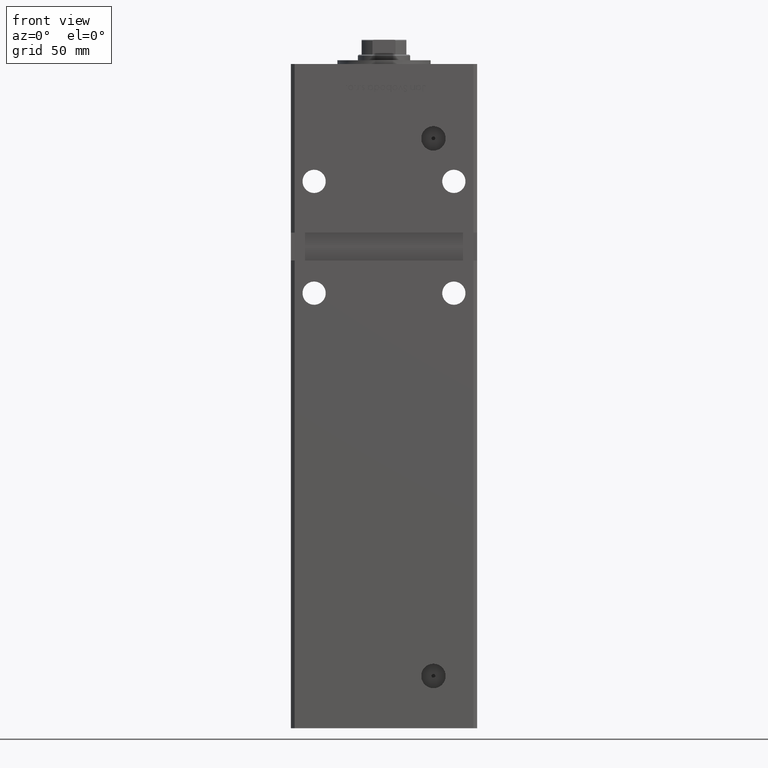
[diagram: clean part render]
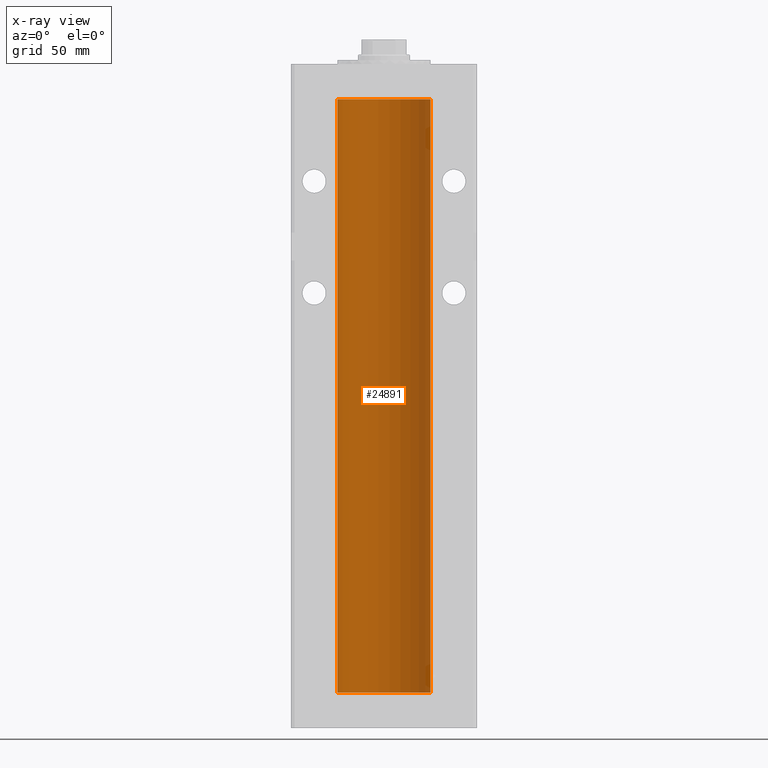
[diagram: x-ray — body ghosted, one internal face saturated and labeled with its STEP entity id]
A machine part, front view, then the same camera in x-ray: the body is ghosted and one INTERNAL B-rep face — a face not visible from any outside direction — is saturated and labeled: STEP entity #24891.
In plain terms, the highlighted cylindrical surface (partial cylindrical patch) has radius 25 mm, axis along (-0, -0, -1).
Its self-contained STEP definition (entity closure, byte-faithful):
#7866 = VERTEX_POINT ( 'NONE', #34885 ) ;
#7893 = CARTESIAN_POINT ( 'NONE',  ( 0.000000000000000000, 0.000000000000000000, 0.000000000000000000 ) ) ;
#7945 = CIRCLE ( 'NONE', #17353, 25.00000000000000000 ) ;
#8152 = CYLINDRICAL_SURFACE ( 'NONE', #14616, 25.00000000000000000 ) ;
#8326 = CIRCLE ( 'NONE', #48701, 25.00000000000000000 ) ;
#8679 = DIRECTION ( 'NONE',  ( 1.000000000000000000, 0.000000000000000000, 0.000000000000000000 ) ) ;
#14616 = AXIS2_PLACEMENT_3D ( 'NONE', #40410, #23744, #25529 ) ;
#14942 = CARTESIAN_POINT ( 'NONE',  ( 25.00000000000000000, 3.061616997868383043E-15, 318.5000000000000000 ) ) ;
#15029 = VECTOR ( 'NONE', #18341, 1000.000000000000000 ) ;
#15925 = EDGE_CURVE ( 'NONE', #22556, #42647, #32819, .T. ) ;
#17353 = AXIS2_PLACEMENT_3D ( 'NONE', #7893, #36913, #8679 ) ;
#18341 = DIRECTION ( 'NONE',  ( -0.000000000000000000, -0.000000000000000000, -1.000000000000000000 ) ) ;
#18685 = ORIENTED_EDGE ( 'NONE', *, *, #15925, .F. ) ;
#20450 = CARTESIAN_POINT ( 'NONE',  ( 25.00000000000000000, 3.061616997868383043E-15, 318.5000000000000000 ) ) ;
#21214 = FACE_OUTER_BOUND ( 'NONE', #37215, .T. ) ;
#22556 = VERTEX_POINT ( 'NONE', #14942 ) ;
#23744 = DIRECTION ( 'NONE',  ( -0.000000000000000000, -0.000000000000000000, -1.000000000000000000 ) ) ;
#24891 = ADVANCED_FACE ( 'NONE', ( #21214 ), #8152, .F. ) ;
#25028 = DIRECTION ( 'NONE',  ( 1.000000000000000000, 0.000000000000000000, 0.000000000000000000 ) ) ;
#25529 = DIRECTION ( 'NONE',  ( -1.000000000000000000, 0.000000000000000000, 0.000000000000000000 ) ) ;
#25639 = LINE ( 'NONE', #42040, #15029 ) ;
#28442 = CARTESIAN_POINT ( 'NONE',  ( 25.00000000000000000, 3.061616997868383043E-15, 0.000000000000000000 ) ) ;
#29862 = CARTESIAN_POINT ( 'NONE',  ( 0.000000000000000000, 0.000000000000000000, 318.5000000000000000 ) ) ;
#30664 = ORIENTED_EDGE ( 'NONE', *, *, #39055, .T. ) ;
#31925 = EDGE_CURVE ( 'NONE', #42647, #51579, #7945, .T. ) ;
#32810 = CARTESIAN_POINT ( 'NONE',  ( -25.00000000000000000, 0.000000000000000000, 0.000000000000000000 ) ) ;
#32819 = LINE ( 'NONE', #20450, #37362 ) ;
#33351 = DIRECTION ( 'NONE',  ( -0.000000000000000000, 0.000000000000000000, 1.000000000000000000 ) ) ;
#34885 = CARTESIAN_POINT ( 'NONE',  ( -25.00000000000000000, 0.000000000000000000, 318.5000000000000000 ) ) ;
#36615 = DIRECTION ( 'NONE',  ( -0.000000000000000000, -0.000000000000000000, -1.000000000000000000 ) ) ;
#36913 = DIRECTION ( 'NONE',  ( -0.000000000000000000, 0.000000000000000000, 1.000000000000000000 ) ) ;
#37215 = EDGE_LOOP ( 'NONE', ( #18685, #40989, #30664, #49571 ) ) ;
#37362 = VECTOR ( 'NONE', #36615, 1000.000000000000000 ) ;
#39055 = EDGE_CURVE ( 'NONE', #7866, #51579, #25639, .T. ) ;
#40410 = CARTESIAN_POINT ( 'NONE',  ( 0.000000000000000000, 0.000000000000000000, 318.5000000000000000 ) ) ;
#40989 = ORIENTED_EDGE ( 'NONE', *, *, #47743, .T. ) ;
#42040 = CARTESIAN_POINT ( 'NONE',  ( -25.00000000000000000, 0.000000000000000000, 318.5000000000000000 ) ) ;
#42647 = VERTEX_POINT ( 'NONE', #28442 ) ;
#47743 = EDGE_CURVE ( 'NONE', #22556, #7866, #8326, .T. ) ;
#48701 = AXIS2_PLACEMENT_3D ( 'NONE', #29862, #33351, #25028 ) ;
#49571 = ORIENTED_EDGE ( 'NONE', *, *, #31925, .F. ) ;
#51579 = VERTEX_POINT ( 'NONE', #32810 ) ;